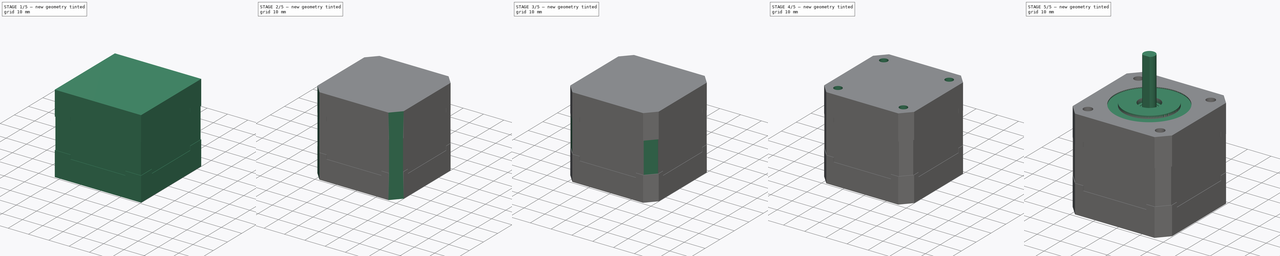
[diagram: build sequence overview — one tinted view per stage of 5, left to right]
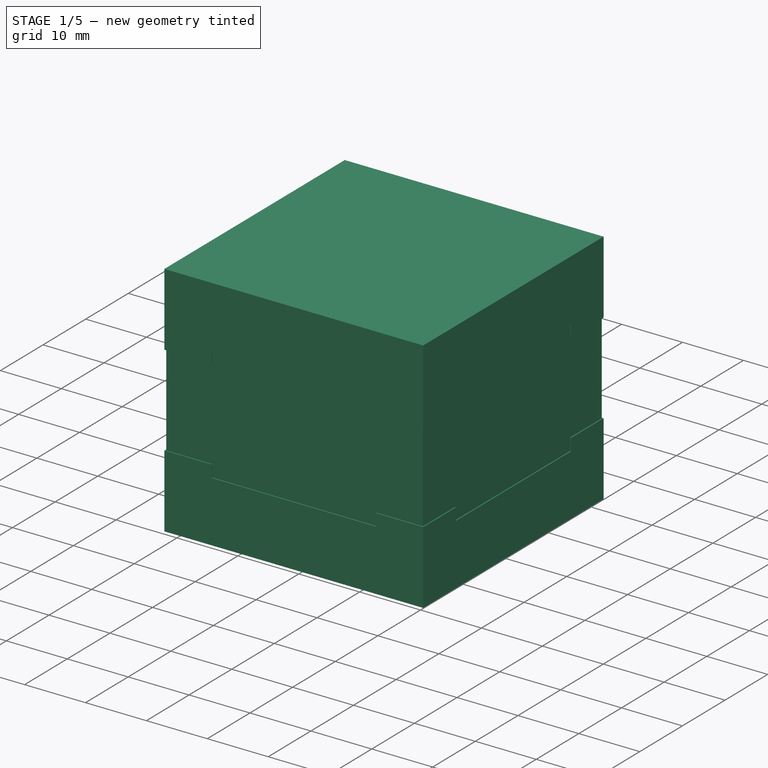
[diagram: stage 1 of 5 — iso view after this stage's code; geometry added in this stage tinted green]
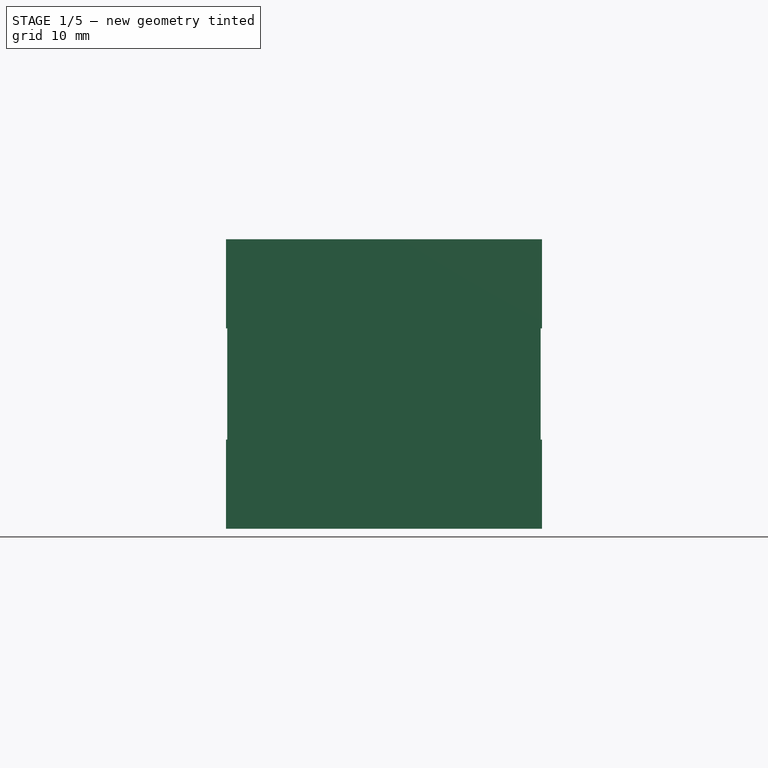
[diagram: stage 1 of 5 — front view after this stage's code; geometry added in this stage tinted green]
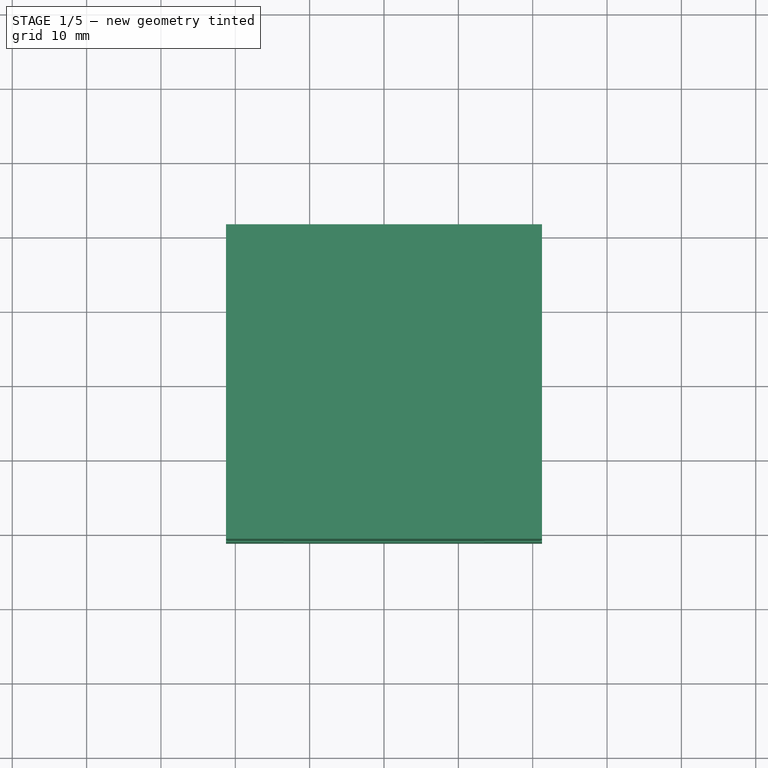
[diagram: stage 1 of 5 — top view after this stage's code; geometry added in this stage tinted green]
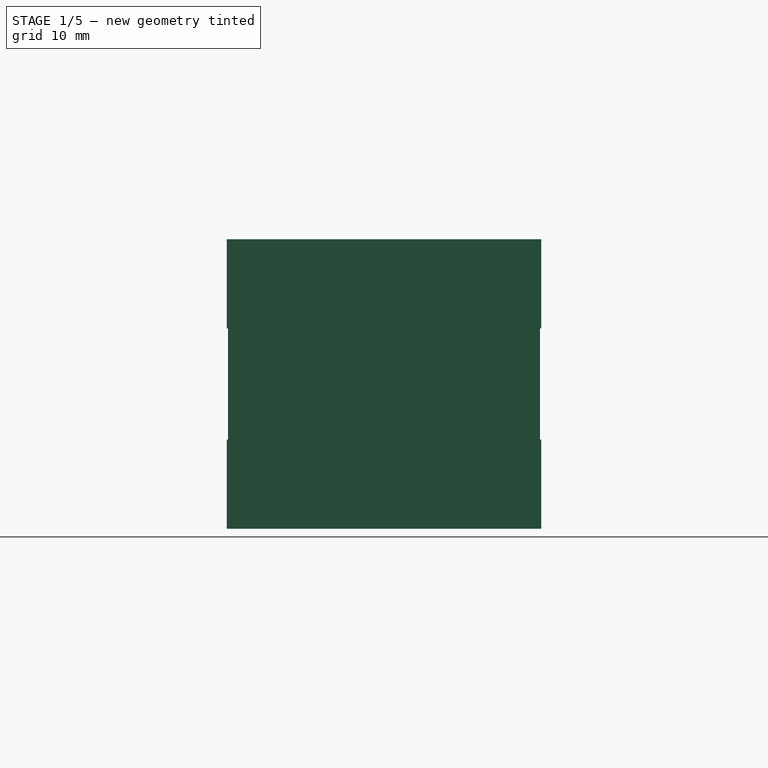
[diagram: stage 1 of 5 — right view after this stage's code; geometry added in this stage tinted green]
FCSTD DOCUMENT  (FreeCAD 0.15R4671 (Git))
Label: NEMA 17
License: CC-BY 3.0
LicenseURL: http://creativecommons.org/licenses/by/3.0/
objects: Sketcher::SketchObject×23, PartDesign::Pocket×17, PartDesign::Pad×6
note: 69 computed .brp shape members not serialized (recipe doc carries the construction recipe); baked Part::Feature solids carry a one-line shape summary decoded from their .brp

FEATURE [Sketcher::SketchObject] Sketch
  Placement = pos=(0,0,0) rot=(1,0,0;1.5708rad)
  sketch-geometry (4):
    g0: LineSegment StartX=-21.25 StartY=19.475 StartZ=0 EndX=21.25 EndY=19.475 EndZ=0
    g1: LineSegment StartX=21.25 StartY=19.475 StartZ=0 EndX=21.25 EndY=-19.475 EndZ=0
    g2: LineSegment StartX=21.25 StartY=-19.475 StartZ=0 EndX=-21.25 EndY=-19.475 EndZ=0
    g3: LineSegment StartX=-21.25 StartY=-19.475 StartZ=0 EndX=-21.25 EndY=19.475 EndZ=0
  constraints (12):
    c: Coincident(g0,g1)
    c: Coincident(g1,g2)
    c: Coincident(g2,g3)
    c: Coincident(g3,g0)
    c: Horizontal(g0)
    c: Horizontal(g2)
    c: Vertical(g1)
    c: Vertical(g3)
    c: DistanceX(g0) = 42.5
    c: Symmetric(g0,g0,g-2)
    c: DistanceY(g3) = 38.95
    c: Symmetric(g2,g0,g-1)
FEATURE [PartDesign::Pad] Pad
  Length = 42.3
  Length2 = 100
  Midplane = true
  Placement = pos=(0,0,0) rot=(1,0,0;1.5708rad)
  Sketch = -> Sketch
  Type = 0
FEATURE [Sketcher::SketchObject] Sketch001
  ExternalGeometry = -> [Pad]
  Placement = pos=(0,-21.15,0) rot=(1,0,0;1.5708rad)
  Support = -> Pad [Face6]
  sketch-geometry (12):
    g0: LineSegment StartX=-13.5 StartY=9.475 StartZ=0 EndX=13.5 EndY=9.475 EndZ=0
    g1: LineSegment StartX=-13.5 StartY=9.475 StartZ=0 EndX=-13.5 EndY=7.475 EndZ=0
    g2: LineSegment StartX=13.5 StartY=9.475 StartZ=0 EndX=13.5 EndY=7.475 EndZ=0
    g3: LineSegment StartX=-13.5 StartY=7.475 StartZ=0 EndX=-21.25 EndY=7.475 EndZ=0
    g4: LineSegment StartX=13.5 StartY=7.475 StartZ=0 EndX=21.25 EndY=7.475 EndZ=0
    g5: LineSegment StartX=-13.5 StartY=-9.475 StartZ=0 EndX=13.5 EndY=-9.475 EndZ=0
    g6: LineSegment StartX=-13.5 StartY=-9.475 StartZ=0 EndX=-13.5 EndY=-7.475 EndZ=0
    g7: LineSegment StartX=13.5 StartY=-9.475 StartZ=0 EndX=13.5 EndY=-7.475 EndZ=0
    g8: LineSegment StartX=-13.5 StartY=-7.475 StartZ=0 EndX=-21.25 EndY=-7.475 EndZ=0
    g9: LineSegment StartX=13.5 StartY=-7.475 StartZ=0 EndX=21.25 EndY=-7.475 EndZ=0
    g10: LineSegment StartX=-21.25 StartY=7.475 StartZ=0 EndX=-21.25 EndY=-7.475 EndZ=0
    g11: LineSegment StartX=21.25 StartY=7.475 StartZ=0 EndX=21.25 EndY=-7.475 EndZ=0
  constraints (36):
    c: Horizontal(g0)
    c: Coincident(g1,g0)
    c: Coincident(g2,g0)
    c: Vertical(g2)
    c: Vertical(g1)
    c: Coincident(g3,g1)
    c: PointOnObject(g3,g-3)
    c: Coincident(g4,g2)
    c: PointOnObject(g4,g-4)
    c: Equal(g2,g1)
    c: Symmetric(g0,g0,g-2)
    c: DistanceX(g0) = 27
    c: DistanceY(g0,g-3) = 10
    c: DistanceY(g3,g-3) = 12
    c: Horizontal(g5)
    c: Coincident(g6,g5)
    c: Coincident(g7,g5)
    c: Coincident(g8,g6)
    c: PointOnObject(g8,g-3)
    c: Horizontal(g8)
    c: Coincident(g9,g7)
    c: PointOnObject(g9,g-4)
    c: Horizontal(g9)
    c: Vertical(g6)
    c: Vertical(g7)
    c: Horizontal(g4)
    c: Horizontal(g3)
    c: DistanceX(g5) = 27
    c: Symmetric(g5,g5,g-2)
    c: Equal(g6,g7)
    c: DistanceY(g-3,g5) = 10
    c: DistanceY(g-3,g8) = 12
    c: Coincident(g10,g3)
    c: Coincident(g10,g8)
    c: Coincident(g11,g4)
    c: Coincident(g11,g9)
FEATURE [PartDesign::Pocket] Pocket
  Length = 0.35
  Midplane = true
  Placement = pos=(0,0,0) rot=(1,0,0;1.5708rad)
  Sketch = -> Sketch001
  Type = 0
FEATURE [Sketcher::SketchObject] Sketch002
  ExternalGeometry = -> [Pocket]
  Placement = pos=(21.25,0,0) rot=(0.707107,0,0.707107;3.14159rad)
  Support = -> Pocket [Face3]
  sketch-geometry (12):
    g0: LineSegment StartX=7.475 StartY=21.15 StartZ=0 EndX=7.475 EndY=13.5 EndZ=0
    g1: LineSegment StartX=7.475 StartY=-13.5 StartZ=0 EndX=7.475 EndY=-21.15 EndZ=0
    g2: LineSegment StartX=7.475 StartY=13.5 StartZ=0 EndX=9.475 EndY=13.5 EndZ=0
    g3: LineSegment StartX=7.475 StartY=-13.5 StartZ=0 EndX=9.475 EndY=-13.5 EndZ=0
    g4: LineSegment StartX=9.475 StartY=-13.5 StartZ=0 EndX=9.475 EndY=13.5 EndZ=0
    g5: LineSegment StartX=-7.475 StartY=21.15 StartZ=0 EndX=-7.475 EndY=13.5 EndZ=0
    g6: LineSegment StartX=-7.475 StartY=-13.5 StartZ=0 EndX=-7.475 EndY=-21.15 EndZ=0
    g7: LineSegment StartX=-7.475 StartY=13.5 StartZ=0 EndX=-9.475 EndY=13.5 EndZ=0
    g8: LineSegment StartX=-7.475 StartY=-13.5 StartZ=0 EndX=-9.475 EndY=-13.5 EndZ=0
    g9: LineSegment StartX=-9.475 StartY=-13.5 StartZ=0 EndX=-9.475 EndY=13.5 EndZ=0
    g10: LineSegment StartX=-7.475 StartY=21.15 StartZ=0 EndX=7.475 EndY=21.15 EndZ=0
    g11: LineSegment StartX=-7.475 StartY=-21.15 StartZ=0 EndX=7.475 EndY=-21.15 EndZ=0
  constraints (34):
    c: Coincident(g0,g-3)
    c: Vertical(g0)
    c: PointOnObject(g1,g-4)
    c: Vertical(g1)
    c: Coincident(g2,g0)
    c: Horizontal(g2)
    c: Coincident(g3,g1)
    c: Horizontal(g3)
    c: Coincident(g4,g3)
    c: Coincident(g4,g2)
    c: Vertical(g4)
    c: Symmetric(g3,g2,g-1)
    c: Equal(g2,g3)
    c: DistanceX(g3,g-4) = 10
    c: DistanceY(g4) = 27
    c: Coincident(g5,g-5)
    c: Vertical(g5)
    c: PointOnObject(g6,g-4)
    c: Vertical(g6)
    c: Coincident(g7,g5)
    c: Horizontal(g7)
    c: Coincident(g8,g6)
    c: Horizontal(g8)
    c: Coincident(g9,g8)
    c: Coincident(g9,g7)
    c: Vertical(g9)
    c: Symmetric(g7,g8,g-1)
    c: Equal(g7,g8)
    c: DistanceY(g9) = 27
    c: DistanceX(g8,g-4) = -10
    c: Coincident(g10,g5)
    c: Coincident(g10,g0)
    c: Coincident(g11,g6)
    c: Coincident(g11,g1)
FEATURE [PartDesign::Pocket] Pocket001
  Length = 0.35
  Midplane = true
  Placement = pos=(0,0,0) rot=(1,0,0;1.5708rad)
  Sketch = -> Sketch002
  Type = 0
FEATURE [Sketcher::SketchObject] Sketch003
  ExternalGeometry = -> [Pocket001]
  Placement = pos=(0,21.15,0) rot=(-1,0,0;1.5708rad)
  Support = -> Pocket001 [Face4]
  sketch-geometry (12):
    g0: LineSegment StartX=21.25 StartY=7.475 StartZ=0 EndX=13.5 EndY=7.475 EndZ=0
    g1: LineSegment StartX=21.25 StartY=-7.475 StartZ=0 EndX=13.5 EndY=-7.475 EndZ=0
    g2: LineSegment StartX=13.5 StartY=7.475 StartZ=0 EndX=13.5 EndY=9.475 EndZ=0
    g3: LineSegment StartX=13.5 StartY=-7.475 StartZ=0 EndX=13.5 EndY=-9.475 EndZ=0
    g4: LineSegment StartX=13.5 StartY=9.475 StartZ=0 EndX=-13.5 EndY=9.475 EndZ=0
    g5: LineSegment StartX=13.5 StartY=-9.475 StartZ=0 EndX=-13.5 EndY=-9.475 EndZ=0
    g6: LineSegment StartX=-13.5 StartY=7.475 StartZ=0 EndX=-21.25 EndY=7.475 EndZ=0
    g7: LineSegment StartX=-13.5 StartY=-7.475 StartZ=0 EndX=-21.25 EndY=-7.475 EndZ=0
    g8: LineSegment StartX=-13.5 StartY=7.475 StartZ=0 EndX=-13.5 EndY=9.475 EndZ=0
    g9: LineSegment StartX=-13.5 StartY=-7.475 StartZ=0 EndX=-13.5 EndY=-9.475 EndZ=0
    g10: LineSegment StartX=-21.25 StartY=-7.475 StartZ=0 EndX=-21.25 EndY=7.475 EndZ=0
    g11: LineSegment StartX=21.25 StartY=-7.475 StartZ=0 EndX=21.25 EndY=7.475 EndZ=0
  constraints (34):
    c: Coincident(g0,g-4)
    c: Horizontal(g0)
    c: Coincident(g1,g-5)
    c: Horizontal(g1)
    c: Coincident(g2,g0)
    c: Vertical(g2)
    c: Coincident(g3,g1)
    c: Vertical(g3)
    c: Coincident(g4,g2)
    c: Horizontal(g4)
    c: Coincident(g5,g3)
    c: Horizontal(g5)
    c: PointOnObject(g6,g-3)
    c: Horizontal(g6)
    c: PointOnObject(g7,g-3)
    c: Horizontal(g7)
    c: Coincident(g8,g6)
    c: Coincident(g8,g4)
    c: Vertical(g8)
    c: Coincident(g9,g7)
    c: Coincident(g9,g5)
    c: Vertical(g9)
    c: Symmetric(g2,g4,g-2)
    c: Symmetric(g5,g3,g-2)
    c: DistanceX(g4) = -27
    c: DistanceX(g5) = -27
    c: DistanceY(g5,g-3) = -10
    c: DistanceY(g4,g-3) = 10
    c: Equal(g2,g8)
    c: Equal(g3,g9)
    c: Coincident(g10,g7)
    c: Coincident(g10,g6)
    c: Coincident(g11,g1)
    c: Coincident(g11,g0)
FEATURE [PartDesign::Pocket] Pocket002
  Length = 0.35
  Midplane = true
  Placement = pos=(0,0,0) rot=(1,0,0;1.5708rad)
  Sketch = -> Sketch003
  Type = 0
FEATURE [Sketcher::SketchObject] Sketch004
  ExternalGeometry = -> [Pocket002]
  Placement = pos=(-21.25,0,0) rot=(0.707107,0,-0.707107;3.14159rad)
  Support = -> Pocket002 [Face2]
  sketch-geometry (12):
    g0: LineSegment StartX=-7.475 StartY=-21.15 StartZ=0 EndX=-7.475 EndY=-13.5 EndZ=0
    g1: LineSegment StartX=-7.475 StartY=21.15 StartZ=0 EndX=-7.475 EndY=13.5 EndZ=0
    g2: LineSegment StartX=7.475 StartY=21.15 StartZ=0 EndX=7.475 EndY=13.5 EndZ=0
    g3: LineSegment StartX=7.475 StartY=-21.15 StartZ=0 EndX=7.475 EndY=-13.5 EndZ=0
    g4: LineSegment StartX=-7.475 StartY=-13.5 StartZ=0 EndX=-9.475 EndY=-13.5 EndZ=0
    g5: LineSegment StartX=7.475 StartY=-13.5 StartZ=0 EndX=9.475 EndY=-13.5 EndZ=0
    g6: LineSegment StartX=-7.475 StartY=13.5 StartZ=0 EndX=-9.475 EndY=13.5 EndZ=0
    g7: LineSegment StartX=7.475 StartY=13.5 StartZ=0 EndX=9.475 EndY=13.5 EndZ=0
    g8: LineSegment StartX=-9.475 StartY=13.5 StartZ=0 EndX=-9.475 EndY=-13.5 EndZ=0
    g9: LineSegment StartX=9.475 StartY=13.5 StartZ=0 EndX=9.475 EndY=-13.5 EndZ=0
    g10: LineSegment StartX=-7.475 StartY=21.15 StartZ=0 EndX=7.475 EndY=21.15 EndZ=0
    g11: LineSegment StartX=-7.475 StartY=-21.15 StartZ=0 EndX=7.475 EndY=-21.15 EndZ=0
  constraints (32):
    c: Coincident(g0,g-5)
    c: Coincident(g1,g-3)
    c: Vertical(g1)
    c: Coincident(g2,g-4)
    c: Vertical(g2)
    c: Coincident(g3,g-6)
    c: Vertical(g3)
    c: Coincident(g4,g0)
    c: Horizontal(g4)
    c: Horizontal(g5)
    c: Coincident(g5,g3)
    c: Vertical(g0)
    c: Coincident(g6,g1)
    c: Horizontal(g6)
    c: Coincident(g7,g2)
    c: Horizontal(g7)
    c: Coincident(g8,g6)
    c: Coincident(g8,g4)
    c: Vertical(g8)
    c: Coincident(g9,g7)
    c: Coincident(g9,g5)
    c: Vertical(g9)
    c: DistanceY(g9) = -27
    c: DistanceY(g8) = -27
    c: Symmetric(g4,g6,g-1)
    c: Symmetric(g5,g7,g-1)
    c: DistanceX(g5,g-6) = 10
    c: DistanceX(g4,g-5) = -10
    c: Coincident(g10,g1)
    c: Coincident(g10,g2)
    c: Coincident(g11,g0)
    c: Coincident(g11,g3)
FEATURE [PartDesign::Pocket] Pocket003
  Length = 0.35
  Midplane = true
  Placement = pos=(0,0,0) rot=(1,0,0;1.5708rad)
  Sketch = -> Sketch004
  Type = 0
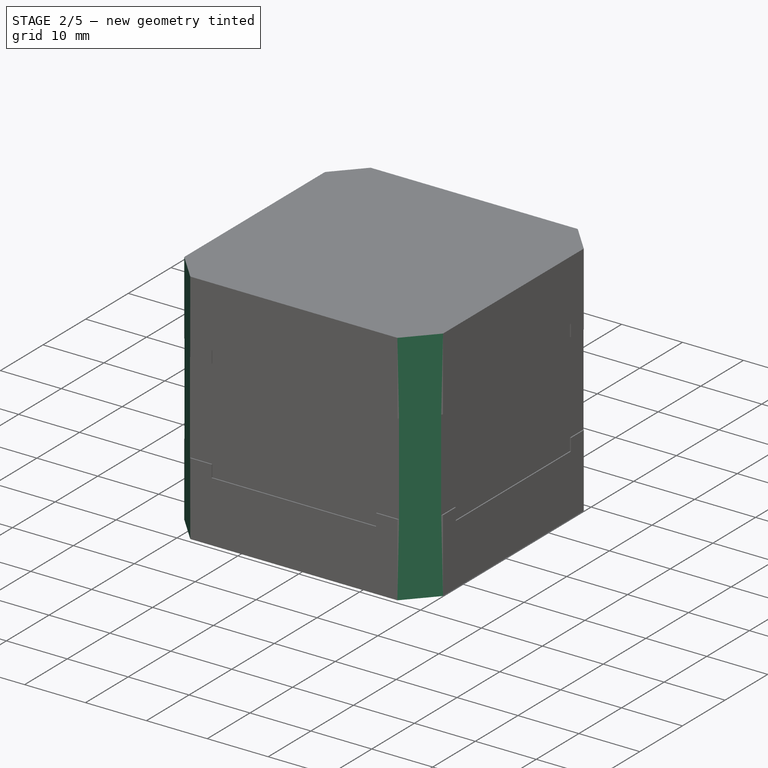
[diagram: stage 2 of 5 — iso view after this stage's code; geometry added in this stage tinted green]
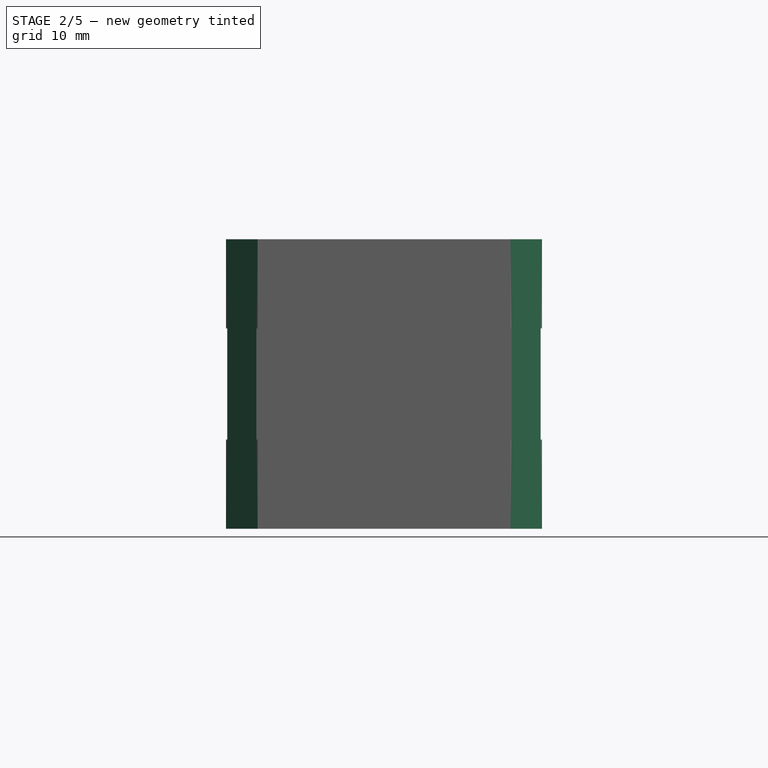
[diagram: stage 2 of 5 — front view after this stage's code; geometry added in this stage tinted green]
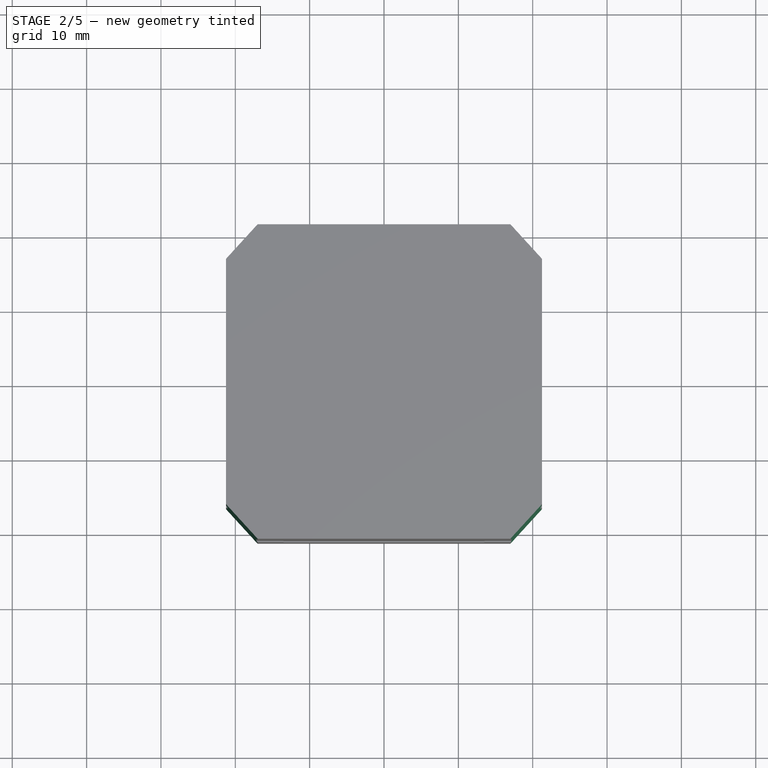
[diagram: stage 2 of 5 — top view after this stage's code; geometry added in this stage tinted green]
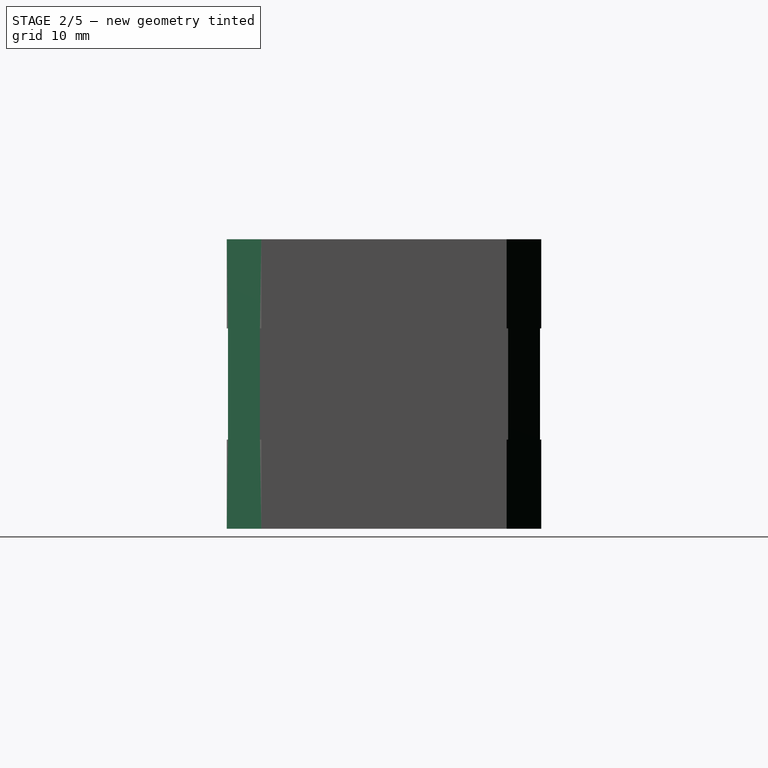
[diagram: stage 2 of 5 — right view after this stage's code; geometry added in this stage tinted green]
FEATURE [Sketcher::SketchObject] Sketch005
  ExternalGeometry = -> [Pocket003]
  Placement = pos=(0,0,19.475) rot=(0,0,1;3.14159rad)
  Support = -> Pocket003 [Face1]
  sketch-geometry (5):
    g0: LineSegment StartX=-17 StartY=21.15 StartZ=0 EndX=17 EndY=21.15 EndZ=0
    g1: LineSegment [constr] StartX=-21.25 StartY=16.5 StartZ=0 EndX=-21.25 EndY=-16.5 EndZ=0
    g2: LineSegment StartX=-21.25 StartY=16.5 StartZ=0 EndX=-17 EndY=21.15 EndZ=0
    g3: LineSegment StartX=-17 StartY=21.15 StartZ=0 EndX=-21.25 EndY=21.15 EndZ=0
    g4: LineSegment StartX=-21.25 StartY=21.15 StartZ=0 EndX=-21.25 EndY=16.5 EndZ=0
  constraints (13):
    c: PointOnObject(g0,g-3)
    c: DistanceX(g0) = 34
    c: Symmetric(g0,g0,g-2)
    c: PointOnObject(g1,g-4)
    c: PointOnObject(g1,g-4)
    c: DistanceY(g1) = -33
    c: Symmetric(g1,g1,g-1)
    c: Coincident(g2,g1)
    c: Coincident(g2,g0)
    c: Coincident(g3,g0)
    c: Coincident(g3,g-4)
    c: Coincident(g4,g3)
    c: Coincident(g4,g1)
FEATURE [PartDesign::Pocket] Pocket004
  Length = 5
  Midplane = true
  Placement = pos=(0,0,0) rot=(1,0,0;1.5708rad)
  Sketch = -> Sketch005
  Type = 1
FEATURE [Sketcher::SketchObject] Sketch006
  ExternalGeometry = -> [Pocket004]
  Placement = pos=(0,0,19.475) rot=(0,0,1;3.14159rad)
  Support = -> Pocket004 [Face1]
  sketch-geometry (5):
    g0: LineSegment [constr] StartX=-17 StartY=21.15 StartZ=0 EndX=17 EndY=21.15 EndZ=0
    g1: LineSegment [constr] StartX=21.25 StartY=16.5 StartZ=0 EndX=21.25 EndY=-16.5 EndZ=0
    g2: LineSegment StartX=17 StartY=21.15 StartZ=0 EndX=21.25 EndY=16.5 EndZ=0
    g3: LineSegment StartX=21.25 StartY=16.5 StartZ=0 EndX=21.25 EndY=21.15 EndZ=0
    g4: LineSegment StartX=21.25 StartY=21.15 StartZ=0 EndX=17 EndY=21.15 EndZ=0
  constraints (13):
    c: Coincident(g0,g-3)
    c: PointOnObject(g0,g-3)
    c: DistanceX(g0) = 34
    c: PointOnObject(g1,g-4)
    c: PointOnObject(g1,g-4)
    c: DistanceY(g1) = -33
    c: Symmetric(g1,g1,g-1)
    c: Coincident(g2,g0)
    c: Coincident(g2,g1)
    c: Coincident(g3,g1)
    c: Coincident(g3,g-4)
    c: Coincident(g4,g3)
    c: Coincident(g4,g0)
FEATURE [PartDesign::Pocket] Pocket005
  Length = 5
  Midplane = true
  Placement = pos=(0,0,0) rot=(1,0,0;1.5708rad)
  Sketch = -> Sketch006
  Type = 1
FEATURE [Sketcher::SketchObject] Sketch007
  ExternalGeometry = -> [Pocket005]
  Placement = pos=(0,0,19.475) rot=(0,0,1;3.14159rad)
  Support = -> Pocket005 [Face1]
  sketch-geometry (5):
    g0: LineSegment [constr] StartX=-17 StartY=-21.15 StartZ=0 EndX=17 EndY=-21.15 EndZ=0
    g1: LineSegment [constr] StartX=-21.25 StartY=16.5 StartZ=0 EndX=-21.25 EndY=-16.5 EndZ=0
    g2: LineSegment StartX=-17 StartY=-21.15 StartZ=0 EndX=-21.25 EndY=-16.5 EndZ=0
    g3: LineSegment StartX=-21.25 StartY=-16.5 StartZ=0 EndX=-21.25 EndY=-21.15 EndZ=0
    g4: LineSegment StartX=-21.25 StartY=-21.15 StartZ=0 EndX=-17 EndY=-21.15 EndZ=0
  constraints (14):
    c: PointOnObject(g0,g-3)
    c: PointOnObject(g0,g-3)
    c: DistanceX(g0) = 34
    c: Symmetric(g0,g0,g-2)
    c: PointOnObject(g1,g-4)
    c: PointOnObject(g1,g-4)
    c: DistanceY(g1) = -33
    c: Coincident(g1,g-4)
    c: Coincident(g2,g0)
    c: Coincident(g2,g1)
    c: Coincident(g3,g1)
    c: Coincident(g3,g-4)
    c: Coincident(g4,g3)
    c: Coincident(g4,g0)
FEATURE [PartDesign::Pocket] Pocket006
  Length = 5
  Midplane = true
  Placement = pos=(0,0,0) rot=(1,0,0;1.5708rad)
  Sketch = -> Sketch007
  Type = 1
FEATURE [Sketcher::SketchObject] Sketch008
  ExternalGeometry = -> [Pocket006]
  Placement = pos=(0,0,19.475) rot=(0,0,1;3.14159rad)
  Support = -> Pocket006 [Face1]
  sketch-geometry (5):
    g0: LineSegment [constr] StartX=-17 StartY=-21.15 StartZ=0 EndX=17 EndY=-21.15 EndZ=0
    g1: LineSegment [constr] StartX=21.25 StartY=16.5 StartZ=0 EndX=21.25 EndY=-16.5 EndZ=0
    g2: LineSegment StartX=21.25 StartY=-16.5 StartZ=0 EndX=17 EndY=-21.15 EndZ=0
    g3: LineSegment StartX=17 StartY=-21.15 StartZ=0 EndX=21.25 EndY=-21.15 EndZ=0
    g4: LineSegment StartX=21.25 StartY=-21.15 StartZ=0 EndX=21.25 EndY=-16.5 EndZ=0
  constraints (12):
    c: Coincident(g0,g-3)
    c: PointOnObject(g0,g-3)
    c: DistanceX(g0) = 34
    c: Coincident(g1,g-4)
    c: PointOnObject(g1,g-4)
    c: DistanceY(g1) = -33
    c: Coincident(g2,g1)
    c: Coincident(g2,g0)
    c: Coincident(g3,g0)
    c: Coincident(g3,g-4)
    c: Coincident(g4,g3)
    c: Coincident(g4,g1)
FEATURE [PartDesign::Pocket] Pocket007
  Length = 5
  Midplane = true
  Placement = pos=(0,0,0) rot=(1,0,0;1.5708rad)
  Sketch = -> Sketch008
  Type = 1
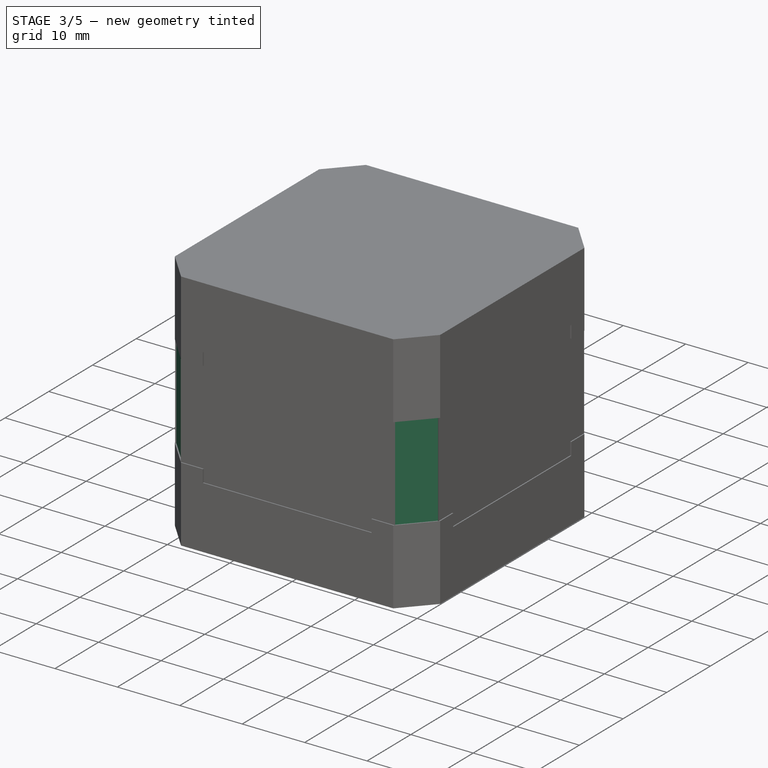
[diagram: stage 3 of 5 — iso view after this stage's code; geometry added in this stage tinted green]
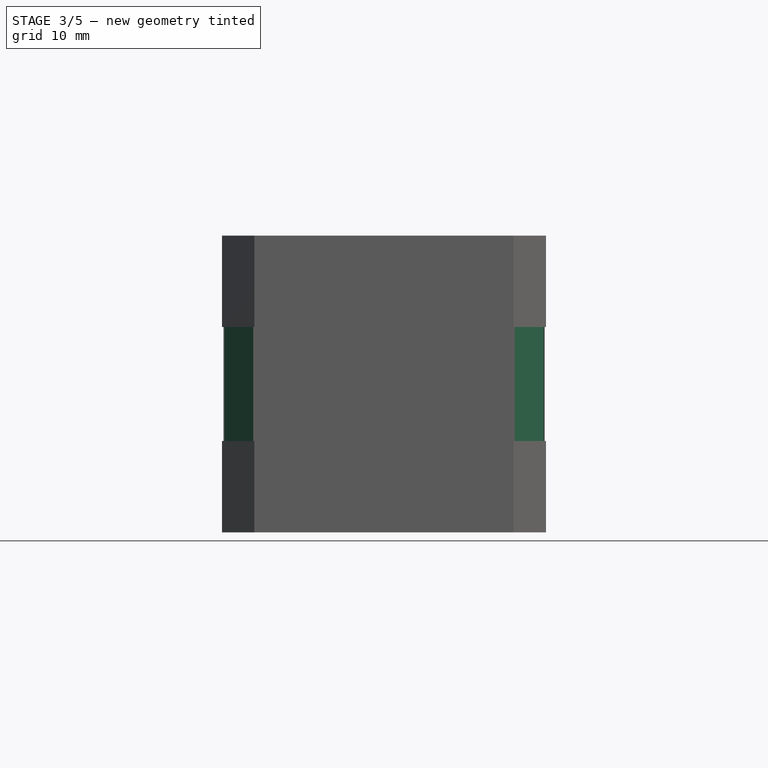
[diagram: stage 3 of 5 — front view after this stage's code; geometry added in this stage tinted green]
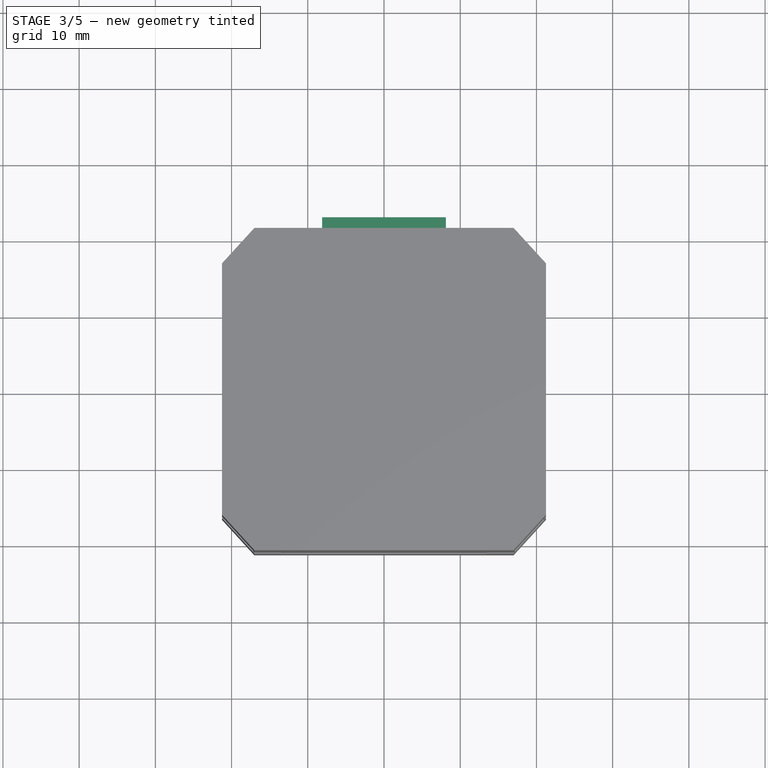
[diagram: stage 3 of 5 — top view after this stage's code; geometry added in this stage tinted green]
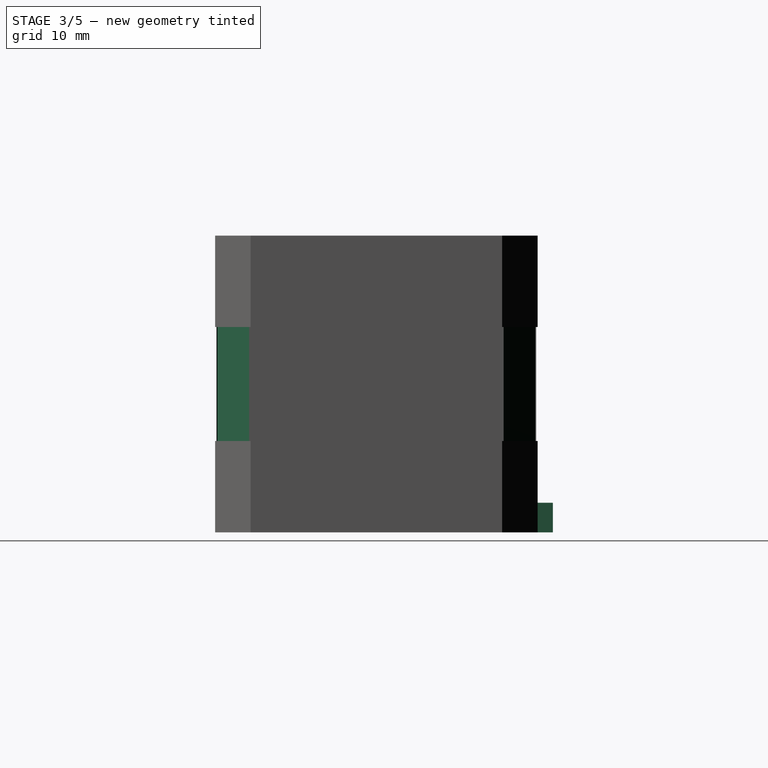
[diagram: stage 3 of 5 — right view after this stage's code; geometry added in this stage tinted green]
FEATURE [Sketcher::SketchObject] Sketch009
  ExternalGeometry = -> [Pocket007]
  Placement = pos=(19.7949,-18.0921,0) rot=(0.681891,-0.26467,0.681891;2.62412rad)
  Support = -> Pocket007 [Face5]
  sketch-geometry (4):
    g0: LineSegment StartX=-7.475 StartY=3.90564 StartZ=0 EndX=-7.475 EndY=-1.89749 EndZ=0
    g1: LineSegment StartX=7.475 StartY=3.90564 StartZ=0 EndX=7.475 EndY=-1.89749 EndZ=0
    g2: LineSegment StartX=-7.475 StartY=3.90564 StartZ=0 EndX=7.475 EndY=3.90564 EndZ=0
    g3: LineSegment StartX=-7.475 StartY=-1.89749 StartZ=0 EndX=7.475 EndY=-1.89749 EndZ=0
  constraints (8):
    c: Coincident(g0,g-3)
    c: Coincident(g0,g-4)
    c: Coincident(g1,g-3)
    c: Coincident(g1,g-4)
    c: Coincident(g2,g0)
    c: Coincident(g2,g1)
    c: Coincident(g3,g0)
    c: Coincident(g3,g1)
FEATURE [PartDesign::Pocket] Pocket008
  Length = 0.35
  Midplane = true
  Placement = pos=(0,0,0) rot=(1,0,0;1.5708rad)
  Sketch = -> Sketch009
  Type = 0
FEATURE [Sketcher::SketchObject] Sketch010
  ExternalGeometry = -> [Pocket008]
  Placement = pos=(19.7949,18.0921,0) rot=(0.681891,0.26467,0.681891;3.65907rad)
  Support = -> Pocket008 [Face3]
  sketch-geometry (4):
    g0: LineSegment StartX=-7.475 StartY=1.89749 StartZ=0 EndX=-7.475 EndY=-3.90564 EndZ=0
    g1: LineSegment StartX=7.475 StartY=1.89749 StartZ=0 EndX=7.475 EndY=-3.90564 EndZ=0
    g2: LineSegment StartX=-7.475 StartY=1.89749 StartZ=0 EndX=7.475 EndY=1.89749 EndZ=0
    g3: LineSegment StartX=-7.475 StartY=-3.90564 StartZ=0 EndX=7.475 EndY=-3.90564 EndZ=0
  constraints (8):
    c: Coincident(g0,g-3)
    c: Coincident(g0,g-4)
    c: Coincident(g1,g-3)
    c: Coincident(g1,g-4)
    c: Coincident(g2,g0)
    c: Coincident(g2,g1)
    c: Coincident(g3,g0)
    c: Coincident(g3,g1)
FEATURE [PartDesign::Pocket] Pocket009
  Length = 0.35
  Midplane = true
  Placement = pos=(0,0,0) rot=(1,0,0;1.5708rad)
  Sketch = -> Sketch010
  Type = 0
FEATURE [Sketcher::SketchObject] Sketch011
  ExternalGeometry = -> [Pocket009]
  Placement = pos=(-19.7949,-18.0921,0) rot=(-0.681891,-0.26467,0.681891;3.65907rad)
  Support = -> Pocket009 [Face7]
  sketch-geometry (4):
    g0: LineSegment StartX=-7.475 StartY=3.90564 StartZ=0 EndX=-7.475 EndY=-1.89749 EndZ=0
    g1: LineSegment StartX=7.475 StartY=3.90564 StartZ=0 EndX=7.475 EndY=-1.89749 EndZ=0
    g2: LineSegment StartX=-7.475 StartY=3.90564 StartZ=0 EndX=7.475 EndY=3.90564 EndZ=0
    g3: LineSegment StartX=-7.475 StartY=-1.89749 StartZ=0 EndX=7.475 EndY=-1.89749 EndZ=0
  constraints (8):
    c: Coincident(g0,g-3)
    c: Coincident(g0,g-4)
    c: Coincident(g1,g-3)
    c: Coincident(g1,g-4)
    c: Coincident(g2,g0)
    c: Coincident(g2,g1)
    c: Coincident(g3,g0)
    c: Coincident(g3,g1)
FEATURE [PartDesign::Pocket] Pocket010
  Length = 0.35
  Midplane = true
  Placement = pos=(0,0,0) rot=(1,0,0;1.5708rad)
  Sketch = -> Sketch011
  Type = 0
FEATURE [Sketcher::SketchObject] Sketch012
  ExternalGeometry = -> [Pocket010]
  Placement = pos=(-19.7949,18.0921,0) rot=(0.681891,-0.26467,-0.681891;3.65907rad)
  Support = -> Pocket010 [Face9]
  sketch-geometry (4):
    g0: LineSegment StartX=-7.475 StartY=1.89749 StartZ=0 EndX=-7.475 EndY=-3.90564 EndZ=0
    g1: LineSegment StartX=7.475 StartY=1.89749 StartZ=0 EndX=7.475 EndY=-3.90564 EndZ=0
    g2: LineSegment StartX=-7.475 StartY=1.89749 StartZ=0 EndX=7.475 EndY=1.89749 EndZ=0
    g3: LineSegment StartX=-7.475 StartY=-3.90564 StartZ=0 EndX=7.475 EndY=-3.90564 EndZ=0
  constraints (8):
    c: Coincident(g0,g-3)
    c: Coincident(g0,g-4)
    c: Coincident(g1,g-3)
    c: Coincident(g1,g-4)
    c: Coincident(g2,g0)
    c: Coincident(g2,g1)
    c: Coincident(g3,g0)
    c: Coincident(g3,g1)
FEATURE [PartDesign::Pocket] Pocket011
  Length = 0.35
  Midplane = true
  Placement = pos=(0,0,0) rot=(1,0,0;1.5708rad)
  Sketch = -> Sketch012
  Type = 0
FEATURE [Sketcher::SketchObject] Sketch013
  ExternalGeometry = -> [Pocket011]
  Placement = pos=(0,21.15,0) rot=(-1,0,0;1.5708rad)
  Support = -> Pocket011 [Face75]
  sketch-geometry (4):
    g0: LineSegment StartX=-8.125 StartY=15.575 StartZ=0 EndX=8.125 EndY=15.575 EndZ=0
    g1: LineSegment StartX=-8.125 StartY=15.575 StartZ=0 EndX=-8.125 EndY=19.475 EndZ=0
    g2: LineSegment StartX=8.125 StartY=15.575 StartZ=0 EndX=8.125 EndY=19.475 EndZ=0
    g3: LineSegment StartX=-8.125 StartY=19.475 StartZ=0 EndX=8.125 EndY=19.475 EndZ=0
  constraints (12):
    c: Horizontal(g0)
    c: DistanceX(g0) = 16.25
    c: Symmetric(g0,g0,g-2)
    c: Coincident(g1,g0)
    c: PointOnObject(g1,g-3)
    c: Vertical(g1)
    c: Coincident(g2,g0)
    c: PointOnObject(g2,g-3)
    c: Vertical(g2)
    c: DistanceY(g1) = 3.9
    c: Coincident(g3,g1)
    c: Coincident(g3,g2)
FEATURE [PartDesign::Pad] Pad001
  Length = 4
  Length2 = 100
  Midplane = true
  Placement = pos=(0,0,0) rot=(1,0,0;1.5708rad)
  Sketch = -> Sketch013
  Type = 0
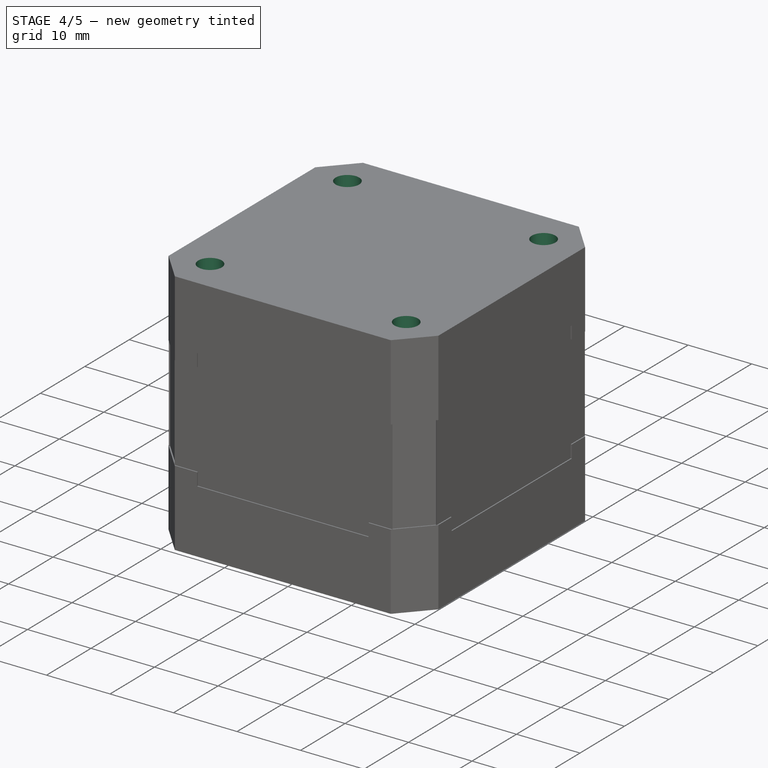
[diagram: stage 4 of 5 — iso view after this stage's code; geometry added in this stage tinted green]
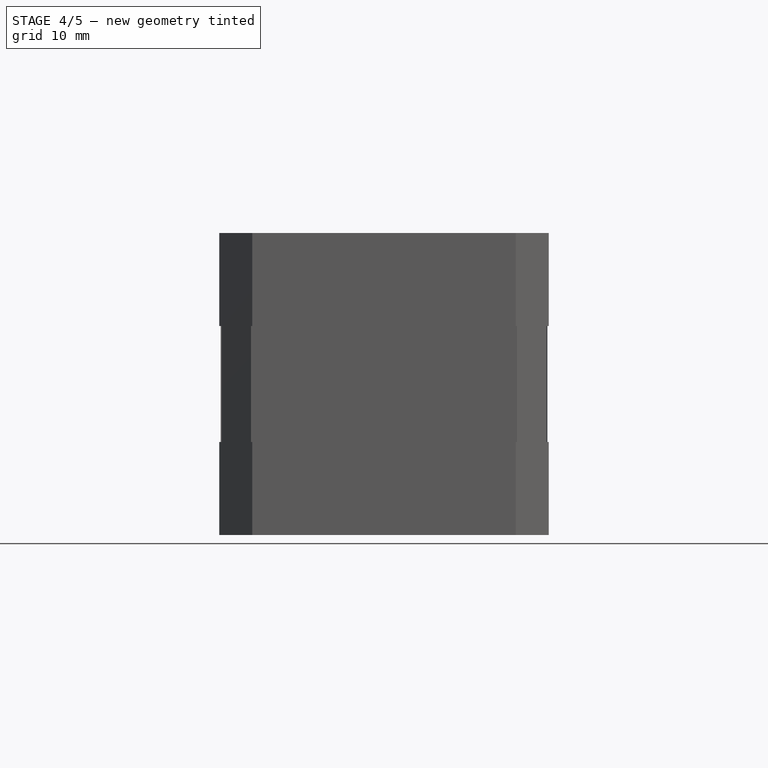
[diagram: stage 4 of 5 — front view after this stage's code; geometry added in this stage tinted green]
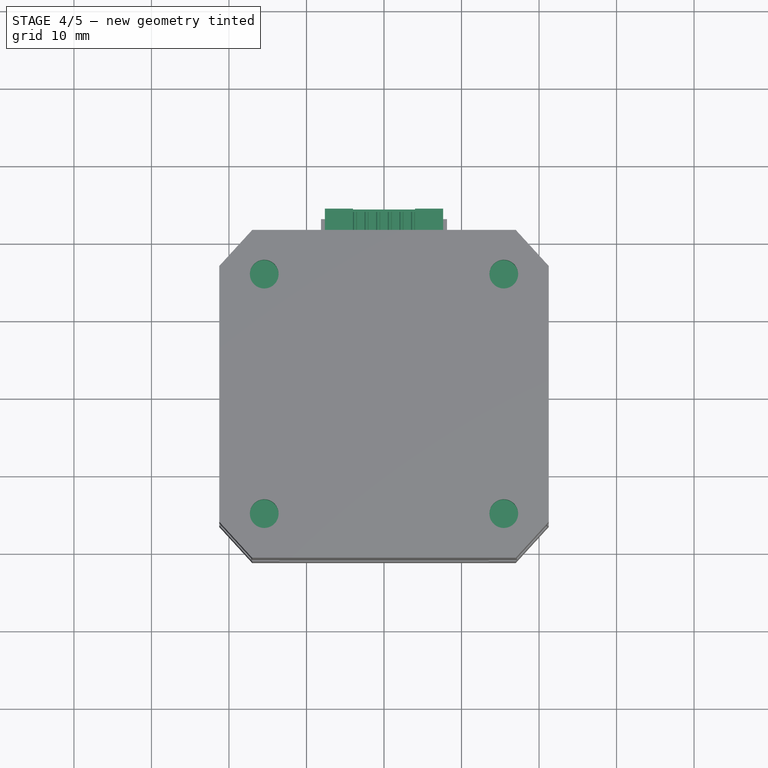
[diagram: stage 4 of 5 — top view after this stage's code; geometry added in this stage tinted green]
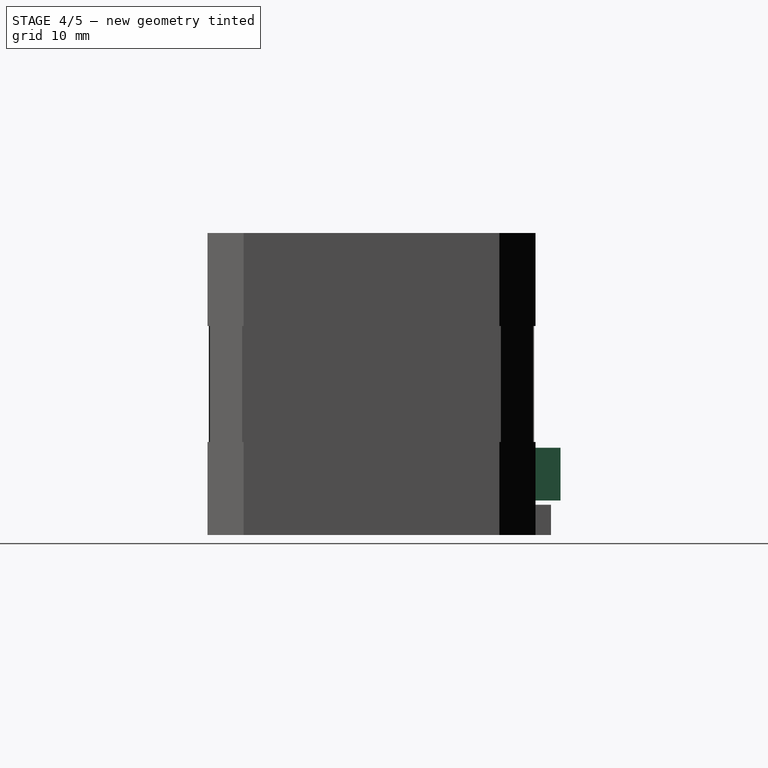
[diagram: stage 4 of 5 — right view after this stage's code; geometry added in this stage tinted green]
FEATURE [Sketcher::SketchObject] Sketch014
  ExternalGeometry = -> [Pad001]
  Placement = pos=(0,21.15,0) rot=(-1,0,0;1.5708rad)
  Support = -> Pad001 [Face75]
  sketch-geometry (4):
    g0: LineSegment StartX=-7.625 StartY=8.225 StartZ=0 EndX=7.625 EndY=8.225 EndZ=0
    g1: LineSegment StartX=-7.625 StartY=8.225 StartZ=0 EndX=-7.625 EndY=15.025 EndZ=0
    g2: LineSegment StartX=7.625 StartY=8.225 StartZ=0 EndX=7.625 EndY=15.025 EndZ=0
    g3: LineSegment StartX=-7.625 StartY=15.025 StartZ=0 EndX=7.625 EndY=15.025 EndZ=0
  constraints (12):
    c: Horizontal(g0)
    c: Symmetric(g0,g0,g-2)
    c: DistanceX(g0) = 15.25
    c: Coincident(g1,g0)
    c: Vertical(g1)
    c: Coincident(g2,g0)
    c: Vertical(g2)
    c: Coincident(g3,g1)
    c: Coincident(g3,g2)
    c: Horizontal(g3)
    c: DistanceY(g1) = 6.8
    c: DistanceY(g0,g-3) = 11.25
FEATURE [PartDesign::Pad] Pad002
  Length = 6.45
  Length2 = 100
  Midplane = true
  Placement = pos=(0,0,0) rot=(1,0,0;1.5708rad)
  Sketch = -> Sketch014
  Type = 0
FEATURE [Sketcher::SketchObject] Sketch015
  ExternalGeometry = -> [Pad002]
  Placement = pos=(0,24.375,0) rot=(-1,0,0;1.5708rad)
  Support = -> Pad002 [Face81]
  sketch-geometry (8):
    g0: LineSegment StartX=-4 StartY=8.225 StartZ=0 EndX=4 EndY=8.225 EndZ=0
    g1: LineSegment StartX=-4 StartY=8.225 StartZ=0 EndX=-4 EndY=9.175 EndZ=0
    g2: LineSegment StartX=4 StartY=8.225 StartZ=0 EndX=4 EndY=9.175 EndZ=0
    g3: LineSegment StartX=-4 StartY=9.175 StartZ=0 EndX=-6.625 EndY=9.175 EndZ=0
    g4: LineSegment StartX=4 StartY=9.175 StartZ=0 EndX=6.625 EndY=9.175 EndZ=0
    g5: LineSegment StartX=6.625 StartY=9.175 StartZ=0 EndX=6.625 EndY=14.025 EndZ=0
    g6: LineSegment StartX=-6.625 StartY=9.175 StartZ=0 EndX=-6.625 EndY=14.025 EndZ=0
    g7: LineSegment StartX=-6.625 StartY=14.025 StartZ=0 EndX=6.625 EndY=14.025 EndZ=0
  constraints (24):
    c: PointOnObject(g0,g-3)
    c: PointOnObject(g0,g-3)
    c: DistanceX(g0) = 8
    c: Symmetric(g0,g0,g-2)
    c: Coincident(g1,g0)
    c: Vertical(g1)
    c: DistanceY(g1) = 0.95
    c: Coincident(g2,g0)
    c: Vertical(g2)
    c: Equal(g2,g1)
    c: Coincident(g3,g1)
    c: Horizontal(g3)
    c: DistanceX(g3,g-3) = -1
    c: Coincident(g4,g2)
    c: Horizontal(g4)
    c: DistanceX(g4,g-3) = 1
    c: Coincident(g5,g4)
    c: Vertical(g5)
    c: DistanceY(g5,g-4) = 1
    c: Coincident(g6,g3)
    c: Vertical(g6)
    c: Coincident(g7,g6)
    c: Coincident(g7,g5)
    c: Equal(g6,g5)
FEATURE [PartDesign::Pocket] Pocket012
  Length = 5.5
  Midplane = true
  Placement = pos=(0,0,0) rot=(1,0,0;1.5708rad)
  Sketch = -> Sketch015
  Type = 0
FEATURE [Sketcher::SketchObject] Sketch016
  ExternalGeometry = -> [Pocket012]
  Placement = pos=(0,21.625,0) rot=(-1,0,0;1.5708rad)
  Support = -> Pocket012 [Face83]
  sketch-geometry (7):
    g0: Circle CenterX=-3.75 CenterY=10.375 CenterZ=0 NormalX=0 NormalY=0 NormalZ=1 Radius=0.25
    g1: Circle CenterX=-2.25 CenterY=10.375 CenterZ=0 NormalX=0 NormalY=0 NormalZ=1 Radius=0.25
    g2: Circle CenterX=-0.75 CenterY=10.375 CenterZ=0 NormalX=0 NormalY=0 NormalZ=1 Radius=0.25
    g3: Circle CenterX=0.75 CenterY=10.375 CenterZ=0 NormalX=0 NormalY=0 NormalZ=1 Radius=0.25
    g4: Circle CenterX=2.25 CenterY=10.375 CenterZ=0 NormalX=0 NormalY=0 NormalZ=1 Radius=0.25
    g5: Circle CenterX=3.75 CenterY=10.375 CenterZ=0 NormalX=0 NormalY=0 NormalZ=1 Radius=0.25
    g6: LineSegment [constr] StartX=-6.625 StartY=10.375 StartZ=0 EndX=6.625 EndY=10.375 EndZ=0
  constraints (22):
    c: Equal(g0,g1)
    c: Equal(g1,g2)
    c: Equal(g2,g3)
    c: Equal(g3,g4)
    c: Equal(g4,g5)
    c: Radius(g0) = 0.25
    c: DistanceY(g0,g-3) = -1.2
    c: PointOnObject(g6,g-4)
    c: PointOnObject(g6,g-5)
    c: PointOnObject(g0,g6)
    c: PointOnObject(g1,g6)
    c: PointOnObject(g2,g6)
    c: PointOnObject(g3,g6)
    c: PointOnObject(g4,g6)
    c: PointOnObject(g5,g6)
    c: DistanceX(g1,g0) = -1.5
    c: DistanceX(g2,g1) = -1.5
    c: Horizontal(g6)
    c: DistanceX(g2,g3) = 1.5
    c: DistanceX(g4,g3) = -1.5
    c: DistanceX(g5,g4) = -1.5
    c: Symmetric(g3,g2,g-2)
FEATURE [PartDesign::Pad] Pad003
  Length = 4.75
  Length2 = 100
  Midplane = true
  Placement = pos=(0,0,0) rot=(1,0,0;1.5708rad)
  Sketch = -> Sketch016
  Type = 0
FEATURE [Sketcher::SketchObject] Sketch017
  Placement = pos=(0,0,19.475) rot=(0,0,1;3.14159rad)
  Support = -> Pad003 [Face1]
  sketch-geometry (7):
    g0: Circle CenterX=-15.45 CenterY=15.45 CenterZ=0 NormalX=0 NormalY=0 NormalZ=1 Radius=1.85
    g1: Circle CenterX=15.45 CenterY=15.45 CenterZ=0 NormalX=0 NormalY=0 NormalZ=1 Radius=1.85
    g2: Circle CenterX=-15.45 CenterY=-15.45 CenterZ=0 NormalX=0 NormalY=0 NormalZ=1 Radius=1.85
    g3: Circle CenterX=15.45 CenterY=-15.45 CenterZ=0 NormalX=0 NormalY=0 NormalZ=1 Radius=1.85
    g4: LineSegment [constr] StartX=-15.45 StartY=15.45 StartZ=0 EndX=15.45 EndY=15.45 EndZ=0
    g5: LineSegment [constr] StartX=-15.45 StartY=-15.45 StartZ=0 EndX=15.45 EndY=-15.45 EndZ=0
    g6: LineSegment [constr] StartX=-15.45 StartY=15.45 StartZ=0 EndX=-15.45 EndY=-15.45 EndZ=0
  constraints (18):
    c: Equal(g2,g0)
    c: Equal(g0,g1)
    c: Equal(g1,g3)
    c: Radius(g0) = 1.85
    c: Coincident(g4,g0)
    c: Coincident(g4,g1)
    c: Horizontal(g4)
    c: DistanceX(g4) = 30.9
    c: Symmetric(g0,g1,g-2)
    c: Coincident(g5,g3)
    c: Coincident(g5,g2)
    c: Horizontal(g5)
    c: Equal(g5,g4)
    c: Symmetric(g2,g3,g-2)
    c: Coincident(g6,g0)
    c: Coincident(g6,g2)
    c: DistanceY(g6) = -30.9
    c: Symmetric(g2,g0,g-1)
FEATURE [PartDesign::Pocket] Pocket013
  Length = 5.95
  Midplane = true
  Placement = pos=(0,0,0) rot=(1,0,0;1.5708rad)
  Sketch = -> Sketch017
  Type = 0
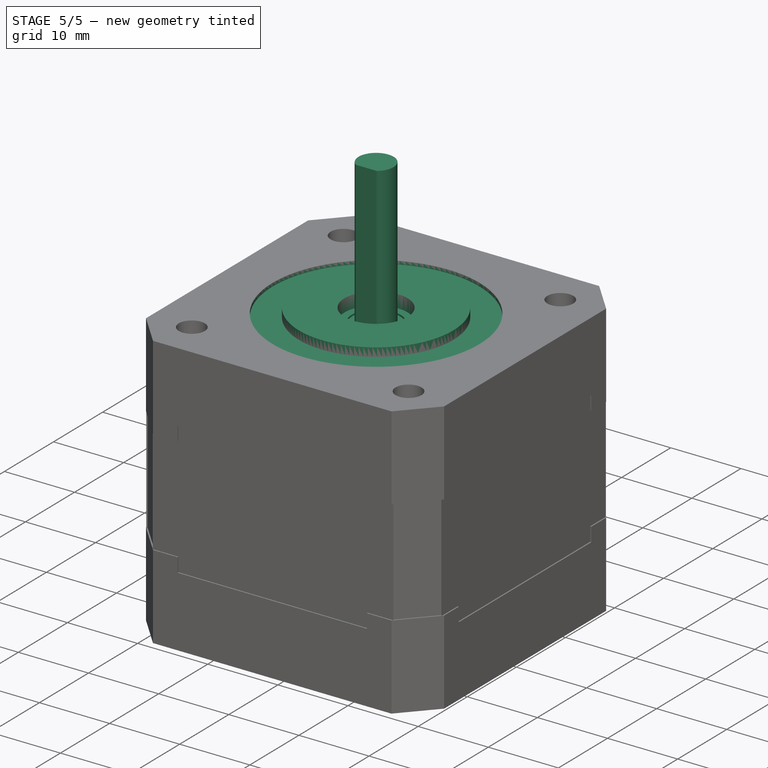
[diagram: stage 5 of 5 — iso view after this stage's code; geometry added in this stage tinted green]
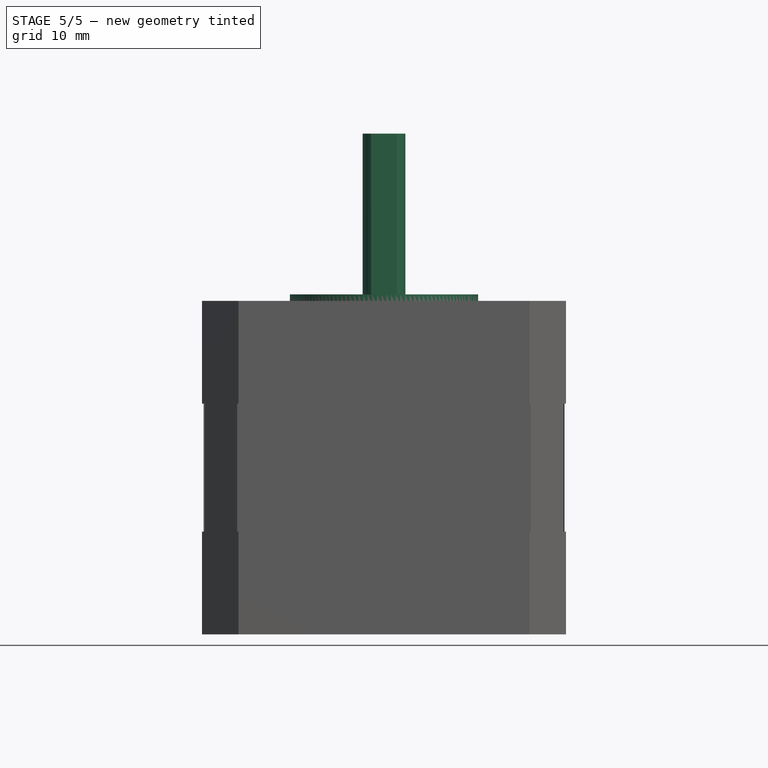
[diagram: stage 5 of 5 — front view after this stage's code; geometry added in this stage tinted green]
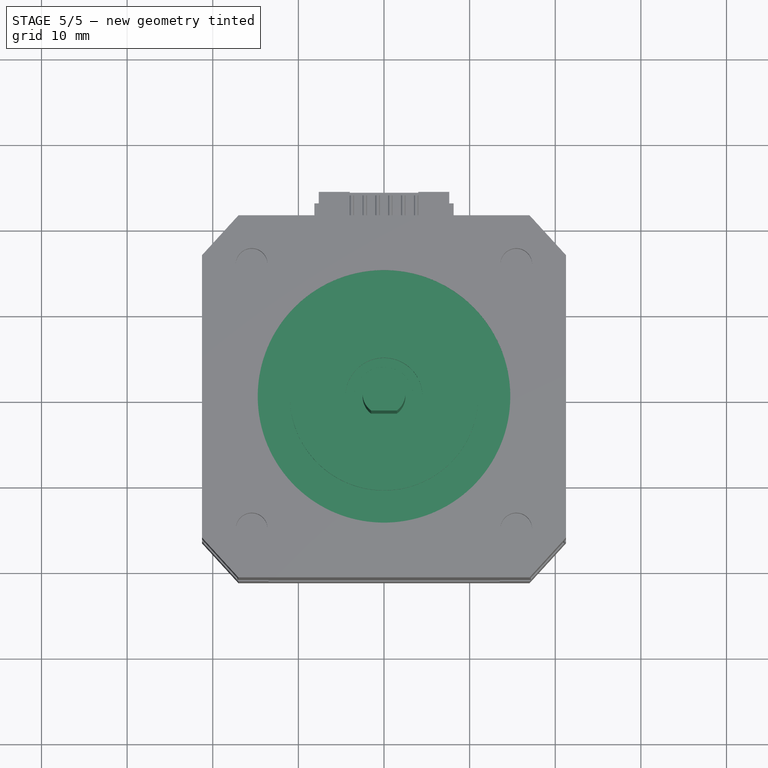
[diagram: stage 5 of 5 — top view after this stage's code; geometry added in this stage tinted green]
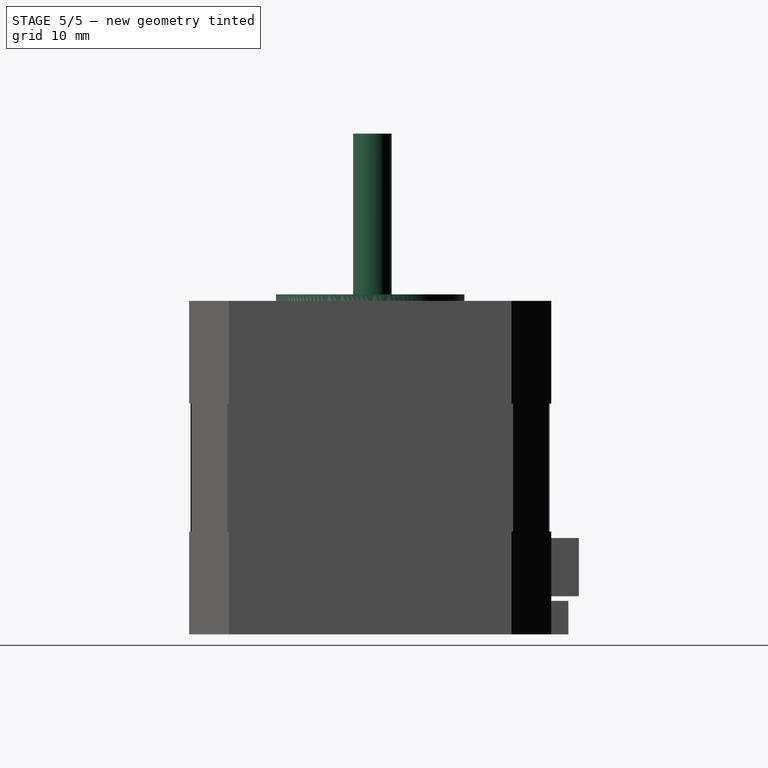
[diagram: stage 5 of 5 — right view after this stage's code; geometry added in this stage tinted green]
FEATURE [Sketcher::SketchObject] Sketch018
  Placement = pos=(0,0,19.475) rot=(0,0,1;3.14159rad)
  Support = -> Pocket013 [Face1]
  sketch-geometry (1):
    g0: Circle CenterX=0 CenterY=0 CenterZ=0 NormalX=0 NormalY=0 NormalZ=1 Radius=14.75
  constraints (2):
    c: Coincident(g0,g-1)
    c: Radius(g0) = 14.75
FEATURE [PartDesign::Pocket] Pocket014
  Length = 0.95
  Midplane = true
  Placement = pos=(0,0,0) rot=(1,0,0;1.5708rad)
  Sketch = -> Sketch018
  Type = 0
FEATURE [Sketcher::SketchObject] Sketch019
  Placement = pos=(0,0,19) rot=(0,0,1;3.14159rad)
  Support = -> Pocket014 [Face43]
  sketch-geometry (1):
    g0: Circle CenterX=0 CenterY=0 CenterZ=0 NormalX=0 NormalY=0 NormalZ=1 Radius=11
  constraints (2):
    c: Coincident(g0,g-1)
    c: Radius(g0) = 11
FEATURE [PartDesign::Pad] Pad004
  Length = 2.45
  Length2 = 100
  Midplane = true
  Placement = pos=(0,0,0) rot=(1,0,0;1.5708rad)
  Sketch = -> Sketch019
  Type = 0
FEATURE [Sketcher::SketchObject] Sketch020
  Placement = pos=(0,0,20.225) rot=(0,0,1;3.14159rad)
  Support = -> Pad004 [Face89]
  sketch-geometry (1):
    g0: Circle CenterX=0 CenterY=0 CenterZ=0 NormalX=0 NormalY=0 NormalZ=1 Radius=4.5
  constraints (2):
    c: Coincident(g0,g-1)
    c: Radius(g0) = 4.5
FEATURE [PartDesign::Pocket] Pocket015
  Length = 3.65
  Midplane = true
  Placement = pos=(0,0,0) rot=(1,0,0;1.5708rad)
  Sketch = -> Sketch020
  Type = 0
FEATURE [Sketcher::SketchObject] Sketch021
  Placement = pos=(0,0,18.4) rot=(0,0,1;3.14159rad)
  Support = -> Pocket015 [Face119]
  sketch-geometry (1):
    g0: Circle CenterX=0 CenterY=0 CenterZ=0 NormalX=0 NormalY=0 NormalZ=1 Radius=3.45
  constraints (2):
    c: Coincident(g0,g-1)
    c: Radius(g0) = 3.45
FEATURE [PartDesign::Pocket] Pocket016
  Length = 0.5
  Midplane = true
  Placement = pos=(0,0,0) rot=(1,0,0;1.5708rad)
  Sketch = -> Sketch021
  Type = 0
FEATURE [Sketcher::SketchObject] Sketch022
  Placement = pos=(0,0,18.15) rot=(0,0,1;3.14159rad)
  Support = -> Pocket016 [Face130]
  sketch-geometry (2):
    g0: ArcOfCircle CenterX=0 CenterY=0 CenterZ=0 NormalX=0 NormalY=0 NormalZ=1 Radius=2.5 StartAngle=2.2143 EndAngle=7.21048
    g1: LineSegment StartX=-1.5 StartY=2 StartZ=0 EndX=1.5 EndY=2 EndZ=0
  constraints (6):
    c: Coincident(g0,g-1)
    c: Radius(g0) = 2.5
    c: Horizontal(g1)
    c: Coincident(g0,g1)
    c: Coincident(g0,g1)
    c: DistanceX(g1) = 3
FEATURE [PartDesign::Pad] Pad005  label="Stepper Motor 5mm Shaft NEMA 17"
  Length = 20.85
  Length2 = 100
  Placement = pos=(0,0,0) rot=(1,0,0;1.5708rad)
  Sketch = -> Sketch022
  Type = 0
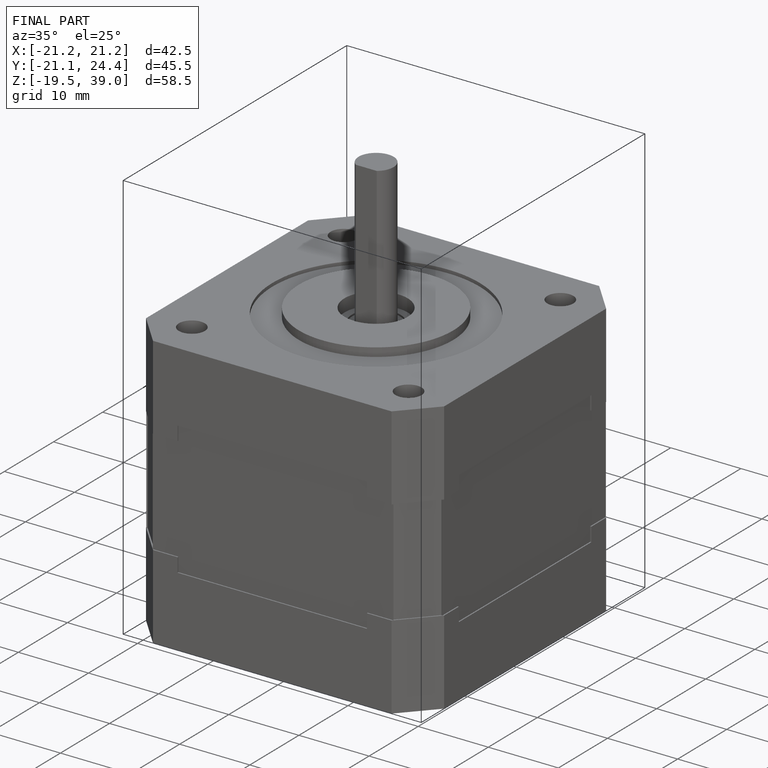
[diagram: finished part — iso view with bounding-box wireframe]
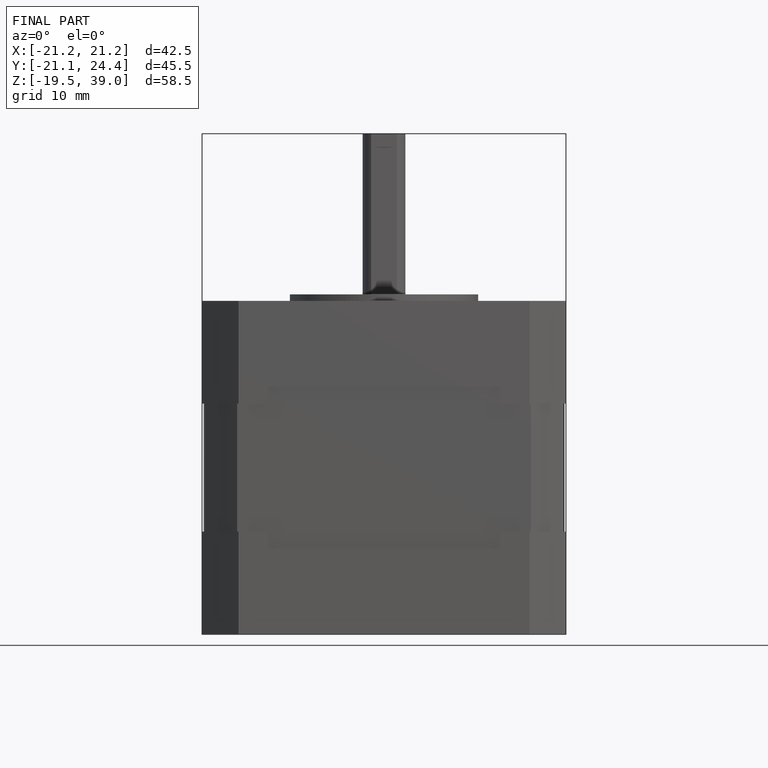
[diagram: finished part — front view with bounding-box wireframe]
